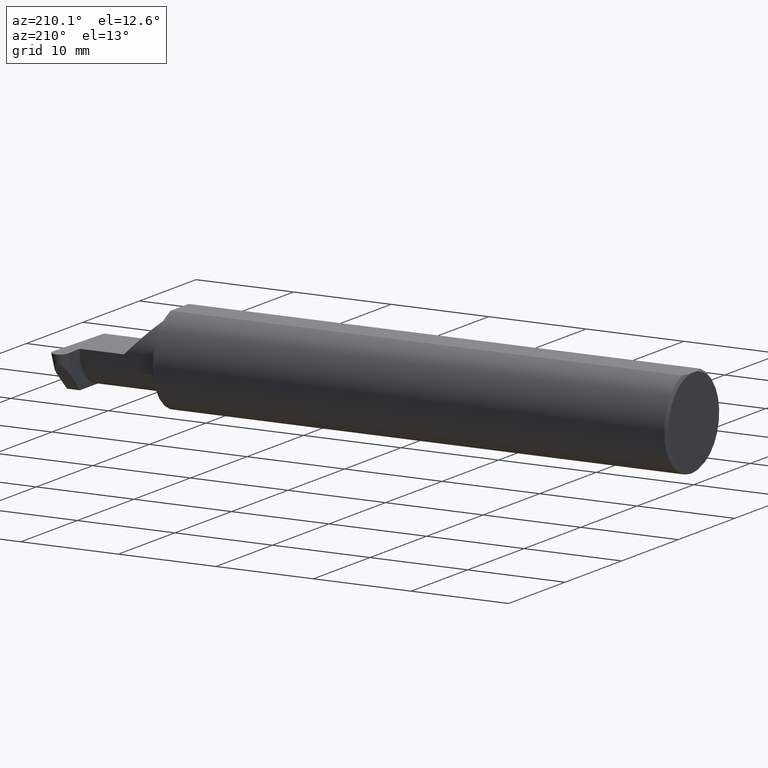
[diagram: clean part render]
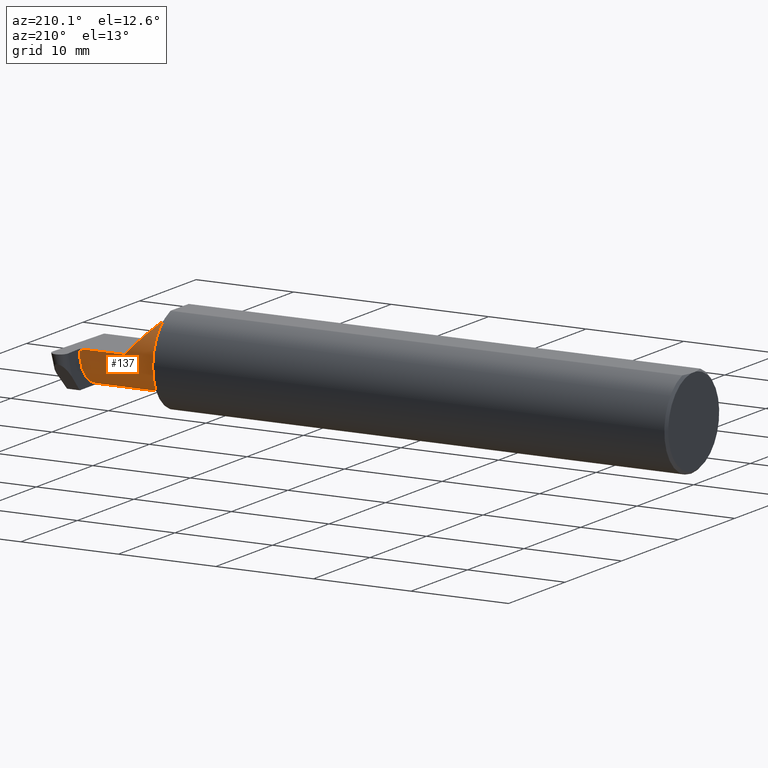
[diagram: same view with one face highlighted and labeled with its STEP entity id]
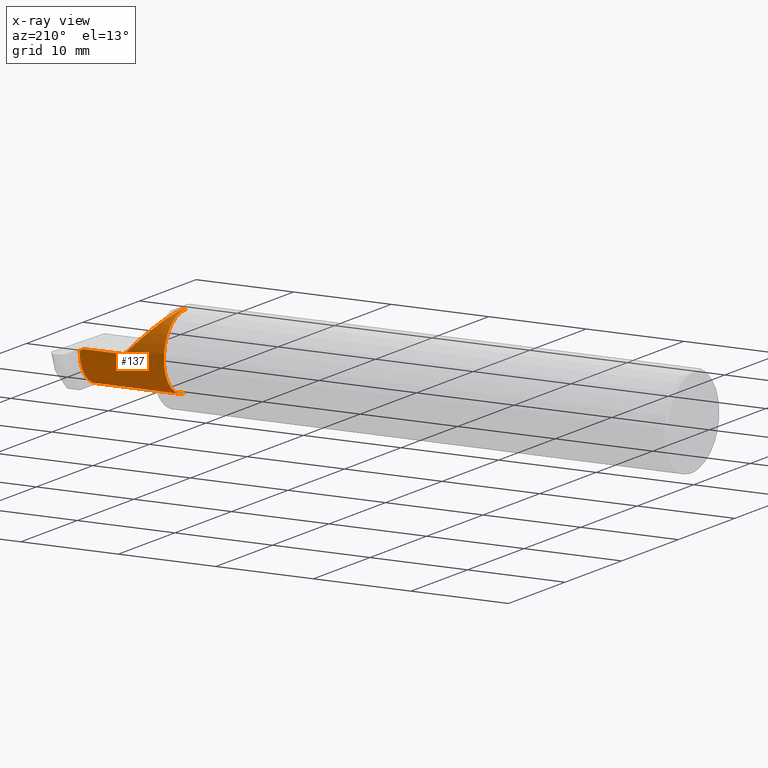
[diagram: x-ray of the same camera — body ghosted, the highlighted face saturated]
A machine part, auxiliary view. The second image highlights one B-rep face of the part: STEP entity #137.
The next image is the same camera in x-ray: the body ghosted, the highlighted face saturated — about 0% of this face is hidden behind the body in this view.
In plain terms, the highlighted cylindrical surface (partial cylindrical patch) has radius 3.81 mm, axis along (-1, -0, -0).
Its self-contained STEP definition (entity closure, byte-faithful):
#3 = ORIENTED_EDGE ( 'NONE', *, *, #450, .F. ) ;
#8 = CARTESIAN_POINT ( 'NONE',  ( 2.430708765333227994, 0.06661954135095467244, -0.001744974835127134595 ) ) ;
#17 = VERTEX_POINT ( 'NONE', #182 ) ;
#18 = CARTESIAN_POINT ( 'NONE',  ( 2.100000000000000089, -0.08334999999999999354, 0.000000000000000000 ) ) ;
#34 =( BOUNDED_CURVE ( )  B_SPLINE_CURVE ( 3, ( #489, #39, #175, #680 ),
 .UNSPECIFIED., .F., .T. ) 
 B_SPLINE_CURVE_WITH_KNOTS ( ( 4, 4 ),
 ( 3.159045946109736214, 4.694935687864695950 ),
 .UNSPECIFIED. ) 
 CURVE ( )  GEOMETRIC_REPRESENTATION_ITEM ( )  RATIONAL_B_SPLINE_CURVE ( ( 1.000000000000000000, 0.8128932002257790446, 0.8128932002257790446, 1.000000000000000000 ) ) 
 REPRESENTATION_ITEM ( '' )  );
#39 = CARTESIAN_POINT ( 'NONE',  ( 2.442590694315768474, 0.002105059811798080851, -0.1500000000000000777 ) ) ;
#45 = VERTEX_POINT ( 'NONE', #665 ) ;
#77 = LINE ( 'NONE', #801, #409 ) ;
#82 = DIRECTION ( 'NONE',  ( 1.000000000000000000, 0.000000000000000000, 0.000000000000000000 ) ) ;
#85 = DIRECTION ( 'NONE',  ( -1.000000000000000000, -0.000000000000000000, -0.000000000000000000 ) ) ;
#90 = CARTESIAN_POINT ( 'NONE',  ( 2.075000000000000178, -0.08334999999999997966, -0.1500000000000000500 ) ) ;
#98 = ORIENTED_EDGE ( 'NONE', *, *, #217, .F. ) ;
#113 = CARTESIAN_POINT ( 'NONE',  ( 2.430647848035137226, 0.06655862405286416816, -0.005234924505381401832 ) ) ;
#116 = ORIENTED_EDGE ( 'NONE', *, *, #673, .F. ) ;
#128 = CARTESIAN_POINT ( 'NONE',  ( 2.430739223982273156, 0.06664999999999991764, 0.000000000000000000 ) ) ;
#129 =( BOUNDED_CURVE ( )  B_SPLINE_CURVE ( 3, ( #591, #286, #213, #401 ),
 .UNSPECIFIED., .F., .F. ) 
 B_SPLINE_CURVE_WITH_KNOTS ( ( 4, 4 ),
 ( 0.000000000000000000, 1.570796326794896336 ),
 .UNSPECIFIED. ) 
 CURVE ( )  GEOMETRIC_REPRESENTATION_ITEM ( )  RATIONAL_B_SPLINE_CURVE ( ( 1.000000000000000000, 0.8047378541243650485, 0.8047378541243650485, 1.000000000000000000 ) ) 
 REPRESENTATION_ITEM ( '' )  );
#131 = CARTESIAN_POINT ( 'NONE',  ( 2.075000000000000178, -0.08334999999999999354, 0.000000000000000000 ) ) ;
#137 = ADVANCED_FACE ( 'NONE', ( #446 ), #634, .T. ) ;
#153 = ORIENTED_EDGE ( 'NONE', *, *, #488, .F. ) ;
#157 = VECTOR ( 'NONE', #414, 39.37007874015748143 ) ;
#167 = VERTEX_POINT ( 'NONE', #502 ) ;
#175 = CARTESIAN_POINT ( 'NONE',  ( 2.441498648347320888, 0.06357628547474594716, -0.09063792740366180545 ) ) ;
#182 = CARTESIAN_POINT ( 'NONE',  ( 2.442617647571764028, -0.08334999999999999354, -0.1500000000000000500 ) ) ;
#213 = CARTESIAN_POINT ( 'NONE',  ( 2.172132034355963359, 0.06665000000000001479, 0.08786796564403576149 ) ) ;
#217 = EDGE_CURVE ( 'NONE', #569, #167, #609, .T. ) ;
#226 = CARTESIAN_POINT ( 'NONE',  ( 2.100000000000000089, -0.08334999999999996578, -0.1500000000000000777 ) ) ;
#257 = DIRECTION ( 'NONE',  ( -1.000000000000000000, -0.000000000000000000, -0.000000000000000000 ) ) ;
#279 = CARTESIAN_POINT ( 'NONE',  ( 2.075000000000000178, 0.06665000000000002867, 5.204748896376251932E-17 ) ) ;
#286 = CARTESIAN_POINT ( 'NONE',  ( 2.109999999999998543, 0.004517965644035750600, 0.1500000000000000500 ) ) ;
#349 = CARTESIAN_POINT ( 'NONE',  ( 2.100000000000000089, -0.08334999999999997966, 0.1500000000000000777 ) ) ;
#357 = EDGE_CURVE ( 'NONE', #539, #167, #589, .T. ) ;
#358 = LINE ( 'NONE', #729, #157 ) ;
#361 = CARTESIAN_POINT ( 'NONE',  ( 2.109999999999998987, -0.08334999999999999354, 0.1500000000000000500 ) ) ;
#372 = DIRECTION ( 'NONE',  ( 0.000000000000000000, 0.000000000000000000, 1.000000000000000000 ) ) ;
#377 = AXIS2_PLACEMENT_3D ( 'NONE', #131, #257, #372 ) ;
#401 = CARTESIAN_POINT ( 'NONE',  ( 2.260000000000000231, 0.06665000000000002867, 5.204748896376251932E-17 ) ) ;
#409 = VECTOR ( 'NONE', #791, 39.37007874015748143 ) ;
#414 = DIRECTION ( 'NONE',  ( -1.000000000000000000, -0.000000000000000000, -0.000000000000000000 ) ) ;
#441 = CARTESIAN_POINT ( 'NONE',  ( 2.430647848035137226, 0.06655862405286416816, -0.005234924505381401832 ) ) ;
#446 = FACE_OUTER_BOUND ( 'NONE', #462, .T. ) ;
#450 = EDGE_CURVE ( 'NONE', #549, #693, #77, .T. ) ;
#462 = EDGE_LOOP ( 'NONE', ( #593, #649, #116, #3, #578, #645, #98, #153 ) ) ;
#463 = DIRECTION ( 'NONE',  ( -1.000000000000000000, -0.000000000000000000, -0.000000000000000000 ) ) ;
#474 = CIRCLE ( 'NONE', #804, 0.1500000000000000500 ) ;
#488 = EDGE_CURVE ( 'NONE', #45, #569, #358, .T. ) ;
#489 = CARTESIAN_POINT ( 'NONE',  ( 2.442617647571764028, -0.08334999999999999354, -0.1500000000000000500 ) ) ;
#502 = CARTESIAN_POINT ( 'NONE',  ( 2.430739223982273156, 0.06664999999999991764, 0.000000000000000000 ) ) ;
#539 = VERTEX_POINT ( 'NONE', #546 ) ;
#546 = CARTESIAN_POINT ( 'NONE',  ( 2.260000000000000231, 0.06665000000000002867, 5.204748896376251932E-17 ) ) ;
#549 = VERTEX_POINT ( 'NONE', #361 ) ;
#569 = VERTEX_POINT ( 'NONE', #113 ) ;
#578 = ORIENTED_EDGE ( 'NONE', *, *, #607, .T. ) ;
#584 = LINE ( 'NONE', #90, #741 ) ;
#588 = DIRECTION ( 'NONE',  ( 0.000000000000000000, 0.000000000000000000, 1.000000000000000000 ) ) ;
#589 = LINE ( 'NONE', #279, #775 ) ;
#591 = CARTESIAN_POINT ( 'NONE',  ( 2.109999999999998987, -0.08334999999999999354, 0.1500000000000000500 ) ) ;
#593 = ORIENTED_EDGE ( 'NONE', *, *, #755, .F. ) ;
#607 = EDGE_CURVE ( 'NONE', #549, #539, #129, .T. ) ;
#609 = B_SPLINE_CURVE_WITH_KNOTS ( 'NONE', 3,
 ( #441, #757, #8, #128 ),
 .UNSPECIFIED., .F., .F.,
 ( 4, 4 ),
 ( 0.000000000000000000, 1.000000000000000000 ),
 .UNSPECIFIED. ) ;
#634 = CYLINDRICAL_SURFACE ( 'NONE', #377, 0.1500000000000000500 ) ;
#645 = ORIENTED_EDGE ( 'NONE', *, *, #357, .T. ) ;
#649 = ORIENTED_EDGE ( 'NONE', *, *, #657, .T. ) ;
#657 = EDGE_CURVE ( 'NONE', #17, #799, #584, .T. ) ;
#665 = CARTESIAN_POINT ( 'NONE',  ( 2.439954497345508511, 0.06655862405284596051, -0.005234924505382013322 ) ) ;
#673 = EDGE_CURVE ( 'NONE', #693, #799, #474, .T. ) ;
#680 = CARTESIAN_POINT ( 'NONE',  ( 2.439954497345508511, 0.06655862405284596051, -0.005234924505382013322 ) ) ;
#693 = VERTEX_POINT ( 'NONE', #349 ) ;
#729 = CARTESIAN_POINT ( 'NONE',  ( 2.074999999999998845, 0.06655862405285889460, -0.005234924505532715690 ) ) ;
#741 = VECTOR ( 'NONE', #85, 39.37007874015748143 ) ;
#755 = EDGE_CURVE ( 'NONE', #17, #45, #34, .T. ) ;
#757 = CARTESIAN_POINT ( 'NONE',  ( 2.430678306684182832, 0.06658908270190942724, -0.003489949670254269623 ) ) ;
#775 = VECTOR ( 'NONE', #82, 39.37007874015748143 ) ;
#791 = DIRECTION ( 'NONE',  ( -1.000000000000000000, -0.000000000000000000, -0.000000000000000000 ) ) ;
#799 = VERTEX_POINT ( 'NONE', #226 ) ;
#801 = CARTESIAN_POINT ( 'NONE',  ( 2.075000000000000178, -0.08334999999999999354, 0.1500000000000000500 ) ) ;
#804 = AXIS2_PLACEMENT_3D ( 'NONE', #18, #463, #588 ) ;